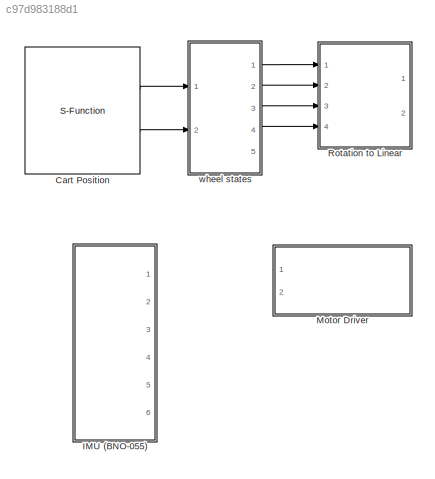
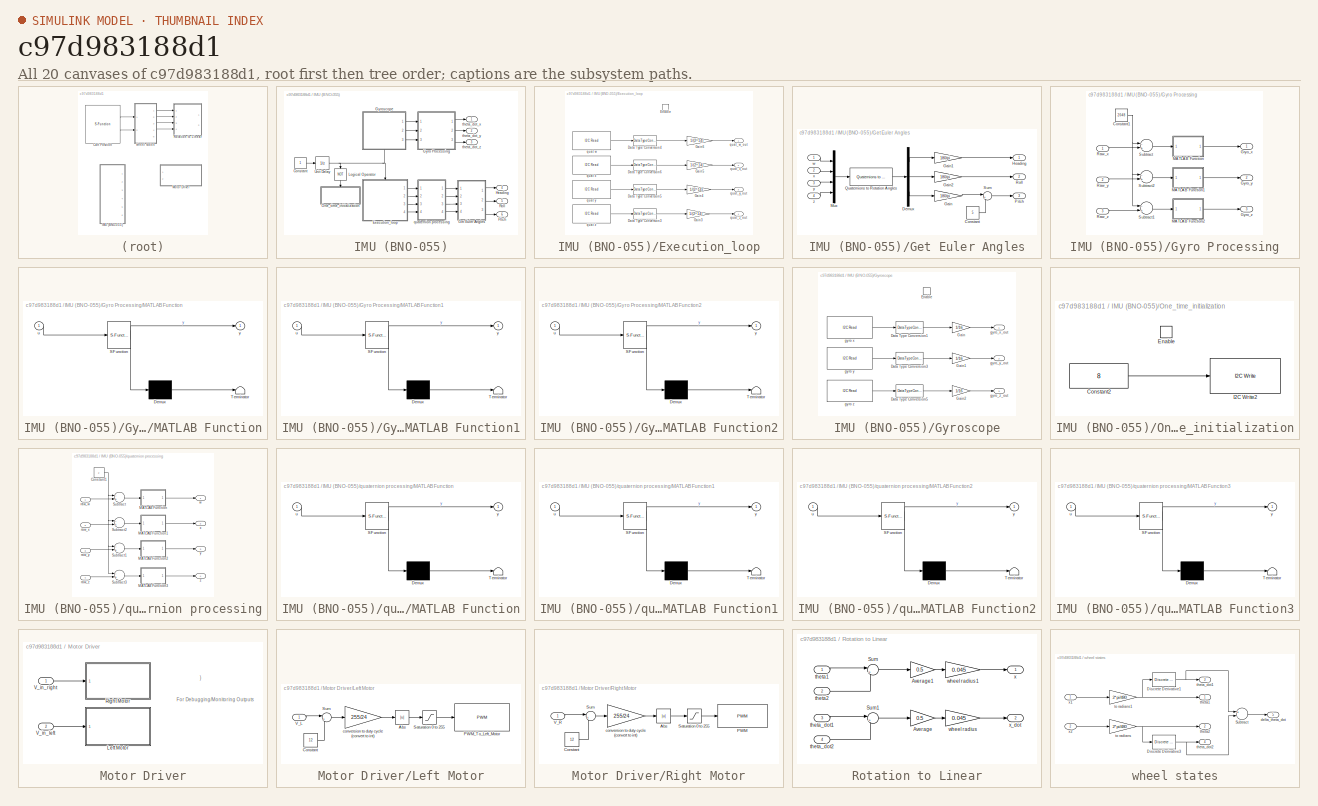
[diagram: thumbnail index - all 20 canvases of the model, root first then tree order]
MODEL slx_c97d983188d1
KIND model
CONFIG AbsTol = auto
CONFIG FixedStep = auto
CONFIG MaxStep = auto
CONFIG MinStep = auto
CONFIG RelTol = 1e-3
CONFIG SampleTimeConstraint = Unconstrained
CONFIG Solver = FixedStepAuto
CONFIG SolverMode = Auto
CONFIG SolverName = FixedStepAuto
CONFIG StartTime = 0.0
CONFIG StopTime = inf
BLOCK [S-Function] Cart Position
  CopyFcn = set_param(gcbh,'LinkStatus','none')
  EnableBusSupport = off
  FunctionName = Read_Quad_Encoders
  InitFcn = try, set_param(gcb,'FunctionName','Read_Quad_Encoders'), end
  OpenFcn = sfunctionwizard(gcbh)
  Parameters = uint8([0 1]),uint8([2 3]),uint8([7 8])
  Ports = [0, 2]
  PreSaveFcn = try, set_param(gcb,'FunctionName','Read_Quad_Encoders'), end
  SFunctionDeploymentMode = off
  SFunctionModules = Read_Quad_Encoders_wrapper
BLOCK [SubSystem] IMU (BNO-055)
  Ports = [0, 6]
  RequestExecContextInheritance = off
  Variant = off
BLOCK [Constant] IMU (BNO-055)/Constant
  OutDataTypeStr = boolean
  SampleTime = 0.02
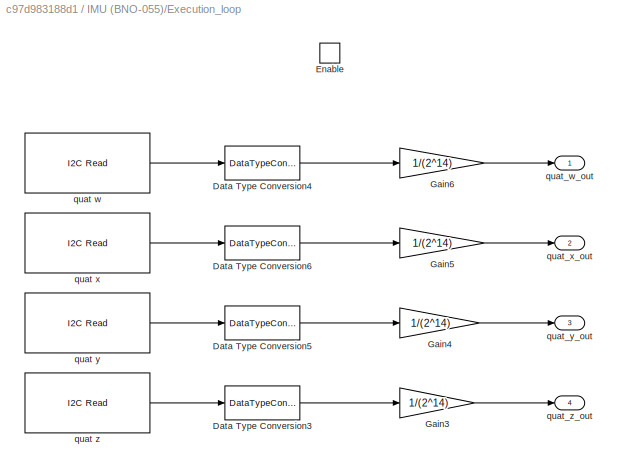
BLOCK [SubSystem] IMU (BNO-055)/Execution_loop
  Ports = [0, 4, 1]
  RequestExecContextInheritance = off
  TreatAsAtomicUnit = on
  Variant = off
BLOCK [DataTypeConversion] IMU (BNO-055)/Execution_loop/Data Type Conversion3
  ConvertRealWorld = Stored Integer (SI)
  OutDataTypeStr = double
  RndMeth = Floor
  SaturateOnIntegerOverflow = off
BLOCK [DataTypeConversion] IMU (BNO-055)/Execution_loop/Data Type Conversion4
  ConvertRealWorld = Stored Integer (SI)
  OutDataTypeStr = double
  RndMeth = Floor
  SaturateOnIntegerOverflow = off
BLOCK [DataTypeConversion] IMU (BNO-055)/Execution_loop/Data Type Conversion5
  ConvertRealWorld = Stored Integer (SI)
  OutDataTypeStr = double
  RndMeth = Floor
  SaturateOnIntegerOverflow = off
BLOCK [DataTypeConversion] IMU (BNO-055)/Execution_loop/Data Type Conversion6
  ConvertRealWorld = Stored Integer (SI)
  OutDataTypeStr = double
  RndMeth = Floor
  SaturateOnIntegerOverflow = off
BLOCK [EnablePort] IMU (BNO-055)/Execution_loop/Enable
  Ports = []
BLOCK [Gain] IMU (BNO-055)/Execution_loop/Gain3
  Gain = 1/(2^14)
  OutDataTypeStr = Inherit: Inherit via internal rule
  ParamDataTypeStr = Inherit: Inherit via internal rule
  SaturateOnIntegerOverflow = off
BLOCK [Gain] IMU (BNO-055)/Execution_loop/Gain4
  Gain = 1/(2^14)
  OutDataTypeStr = Inherit: Inherit via internal rule
  ParamDataTypeStr = Inherit: Inherit via internal rule
  SaturateOnIntegerOverflow = off
BLOCK [Gain] IMU (BNO-055)/Execution_loop/Gain5
  Gain = 1/(2^14)
  OutDataTypeStr = Inherit: Inherit via internal rule
  ParamDataTypeStr = Inherit: Inherit via internal rule
  SaturateOnIntegerOverflow = off
BLOCK [Gain] IMU (BNO-055)/Execution_loop/Gain6
  Gain = 1/(2^14)
  OutDataTypeStr = Inherit: Inherit via internal rule
  ParamDataTypeStr = Inherit: Inherit via internal rule
  SaturateOnIntegerOverflow = off
BLOCK [Reference] IMU (BNO-055)/Execution_loop/quat w  REF=arduinolib/I2C Read
  Ports = [0, 1]
  SourceBlock = arduinolib/I2C Read
  SourceType = I2C Read
BLOCK [Reference] IMU (BNO-055)/Execution_loop/quat x  REF=arduinolib/I2C Read
  Ports = [0, 1]
  SourceBlock = arduinolib/I2C Read
  SourceType = I2C Read
BLOCK [Reference] IMU (BNO-055)/Execution_loop/quat y  REF=arduinolib/I2C Read
  Ports = [0, 1]
  SourceBlock = arduinolib/I2C Read
  SourceType = I2C Read
BLOCK [Reference] IMU (BNO-055)/Execution_loop/quat z  REF=arduinolib/I2C Read
  Ports = [0, 1]
  SourceBlock = arduinolib/I2C Read
  SourceType = I2C Read
BLOCK [Outport] IMU (BNO-055)/Execution_loop/quat_w_out
  IconDisplay = Port number
BLOCK [Outport] IMU (BNO-055)/Execution_loop/quat_x_out
  IconDisplay = Port number
  Port = 2
BLOCK [Outport] IMU (BNO-055)/Execution_loop/quat_y_out
  IconDisplay = Port number
  Port = 3
BLOCK [Outport] IMU (BNO-055)/Execution_loop/quat_z_out
  IconDisplay = Port number
  Port = 4
BLOCK [SubSystem] IMU (BNO-055)/Get Euler Angles
  Ports = [4, 3]
  RequestExecContextInheritance = off
  Variant = off
BLOCK [Constant] IMU (BNO-055)/Get Euler Angles/Constant
  Value = 5
BLOCK [Demux] IMU (BNO-055)/Get Euler Angles/Demux
  DisplayOption = bar
  Outputs = 3
  Ports = [1, 3]
BLOCK [Gain] IMU (BNO-055)/Get Euler Angles/Gain
  Gain = 180/pi
  OutDataTypeStr = Inherit: Inherit via internal rule
  ParamDataTypeStr = Inherit: Inherit via internal rule
  SaturateOnIntegerOverflow = off
BLOCK [Gain] IMU (BNO-055)/Get Euler Angles/Gain1
  Gain = 180/pi
  OutDataTypeStr = Inherit: Inherit via internal rule
  ParamDataTypeStr = Inherit: Inherit via internal rule
  SaturateOnIntegerOverflow = off
BLOCK [Gain] IMU (BNO-055)/Get Euler Angles/Gain2
  Gain = 180/pi
  OutDataTypeStr = Inherit: Inherit via internal rule
  ParamDataTypeStr = Inherit: Inherit via internal rule
  SaturateOnIntegerOverflow = off
BLOCK [Outport] IMU (BNO-055)/Get Euler Angles/Heading
  IconDisplay = Port number
BLOCK [Mux] IMU (BNO-055)/Get Euler Angles/Mux
  DisplayOption = bar
  Ports = [4, 1]
BLOCK [Outport] IMU (BNO-055)/Get Euler Angles/Pitch
  IconDisplay = Port number
  Port = 3
BLOCK [Reference] IMU (BNO-055)/Get Euler Angles/Quaternions to Rotation Angles  REF=aerolibtransform2/Quaternions to Rotation Angles
  AttributesFormatString = Rotation Order: %<rotationOrder>
  Ports = [1, 1]
  SourceBlock = aerolibtransform2/Quaternions to Rotation Angles
  SourceType = Quat2Ang
BLOCK [Outport] IMU (BNO-055)/Get Euler Angles/Roll
  IconDisplay = Port number
  Port = 2
BLOCK [Sum] IMU (BNO-055)/Get Euler Angles/Sum
  IconShape = round
  InputSameDT = off
  Inputs = |++
  OutDataTypeStr = Inherit: Inherit via internal rule
  Ports = [2, 1]
  SaturateOnIntegerOverflow = off
BLOCK [Inport] IMU (BNO-055)/Get Euler Angles/w
  IconDisplay = Port number
BLOCK [Inport] IMU (BNO-055)/Get Euler Angles/x
  IconDisplay = Port number
  Port = 2
BLOCK [Inport] IMU (BNO-055)/Get Euler Angles/y
  IconDisplay = Port number
  Port = 3
BLOCK [Inport] IMU (BNO-055)/Get Euler Angles/z
  IconDisplay = Port number
  Port = 4
BLOCK [SubSystem] IMU (BNO-055)/Gyro Processing
  Ports = [3, 3]
  RequestExecContextInheritance = off
  Variant = off
BLOCK [Constant] IMU (BNO-055)/Gyro Processing/Constant1
  OutDataTypeStr = double
  Value = 2048
BLOCK [Outport] IMU (BNO-055)/Gyro Processing/Gryo_x
  IconDisplay = Port number
BLOCK [Outport] IMU (BNO-055)/Gyro Processing/Gyro_y
  IconDisplay = Port number
  Port = 2
BLOCK [Outport] IMU (BNO-055)/Gyro Processing/Gyro_z
  IconDisplay = Port number
  Port = 3
BLOCK [SubSystem] IMU (BNO-055)/Gyro Processing/MATLAB Function
  ErrorFcn = Stateflow.Translate.translate
  PermitHierarchicalResolution = ExplicitOnly
  Ports = [1, 1]
  RequestExecContextInheritance = off
  SFBlockType = MATLAB Function
  TreatAsAtomicUnit = on
  Variant = off
BLOCK [Demux] IMU (BNO-055)/Gyro Processing/MATLAB Function/ Demux 
  Outputs = 1
  Ports = [1, 1]
BLOCK [S-Function] IMU (BNO-055)/Gyro Processing/MATLAB Function/ SFunction 
  EnableBusSupport = on
  FunctionName = sf_sfun
  PortCounts = [1 2]
  Ports = [1, 2]
  SFunctionDeploymentMode = off
  Tag = Stateflow S-Function InvertedPendulumRobot_ControllerDesignLab 2
BLOCK [Terminator] IMU (BNO-055)/Gyro Processing/MATLAB Function/ Terminator 
BLOCK [Inport] IMU (BNO-055)/Gyro Processing/MATLAB Function/u
  IconDisplay = Port number
BLOCK [Outport] IMU (BNO-055)/Gyro Processing/MATLAB Function/y
  IconDisplay = Port number
BLOCK [SubSystem] IMU (BNO-055)/Gyro Processing/MATLAB Function1
  ErrorFcn = Stateflow.Translate.translate
  PermitHierarchicalResolution = ExplicitOnly
  Ports = [1, 1]
  RequestExecContextInheritance = off
  SFBlockType = MATLAB Function
  TreatAsAtomicUnit = on
  Variant = off
BLOCK [Demux] IMU (BNO-055)/Gyro Processing/MATLAB Function1/ Demux 
  Outputs = 1
  Ports = [1, 1]
BLOCK [S-Function] IMU (BNO-055)/Gyro Processing/MATLAB Function1/ SFunction 
  EnableBusSupport = on
  FunctionName = sf_sfun
  PortCounts = [1 2]
  Ports = [1, 2]
  SFunctionDeploymentMode = off
  Tag = Stateflow S-Function InvertedPendulumRobot_ControllerDesignLab 1
BLOCK [Terminator] IMU (BNO-055)/Gyro Processing/MATLAB Function1/ Terminator 
BLOCK [Inport] IMU (BNO-055)/Gyro Processing/MATLAB Function1/u
  IconDisplay = Port number
BLOCK [Outport] IMU (BNO-055)/Gyro Processing/MATLAB Function1/y
  IconDisplay = Port number
BLOCK [SubSystem] IMU (BNO-055)/Gyro Processing/MATLAB Function2
  ErrorFcn = Stateflow.Translate.translate
  PermitHierarchicalResolution = ExplicitOnly
  Ports = [1, 1]
  RequestExecContextInheritance = off
  SFBlockType = MATLAB Function
  TreatAsAtomicUnit = on
  Variant = off
BLOCK [Demux] IMU (BNO-055)/Gyro Processing/MATLAB Function2/ Demux 
  Outputs = 1
  Ports = [1, 1]
BLOCK [S-Function] IMU (BNO-055)/Gyro Processing/MATLAB Function2/ SFunction 
  EnableBusSupport = on
  FunctionName = sf_sfun
  PortCounts = [1 2]
  Ports = [1, 2]
  SFunctionDeploymentMode = off
  Tag = Stateflow S-Function InvertedPendulumRobot_ControllerDesignLab 3
BLOCK [Terminator] IMU (BNO-055)/Gyro Processing/MATLAB Function2/ Terminator 
BLOCK [Inport] IMU (BNO-055)/Gyro Processing/MATLAB Function2/u
  IconDisplay = Port number
BLOCK [Outport] IMU (BNO-055)/Gyro Processing/MATLAB Function2/y
  IconDisplay = Port number
BLOCK [Inport] IMU (BNO-055)/Gyro Processing/Raw_x
  IconDisplay = Port number
BLOCK [Inport] IMU (BNO-055)/Gyro Processing/Raw_y
  IconDisplay = Port number
  Port = 2
BLOCK [Inport] IMU (BNO-055)/Gyro Processing/Raw_z
  IconDisplay = Port number
  Port = 3
BLOCK [Sum] IMU (BNO-055)/Gyro Processing/Subtract
  InputSameDT = off
  Inputs = -+
  OutDataTypeStr = double
  Ports = [2, 1]
  SaturateOnIntegerOverflow = off
BLOCK [Sum] IMU (BNO-055)/Gyro Processing/Subtract1
  InputSameDT = off
  Inputs = -+
  OutDataTypeStr = double
  Ports = [2, 1]
  SaturateOnIntegerOverflow = off
BLOCK [Sum] IMU (BNO-055)/Gyro Processing/Subtract2
  InputSameDT = off
  Inputs = -+
  OutDataTypeStr = double
  Ports = [2, 1]
  SaturateOnIntegerOverflow = off
BLOCK [SubSystem] IMU (BNO-055)/Gyroscope
  Ports = [0, 3, 1]
  RequestExecContextInheritance = off
  TreatAsAtomicUnit = on
  Variant = off
BLOCK [DataTypeConversion] IMU (BNO-055)/Gyroscope/Data Type Conversion1
  OutDataTypeStr = double
  RndMeth = Floor
  SaturateOnIntegerOverflow = off
BLOCK [DataTypeConversion] IMU (BNO-055)/Gyroscope/Data Type Conversion3
  OutDataTypeStr = double
  RndMeth = Floor
  SaturateOnIntegerOverflow = off
BLOCK [DataTypeConversion] IMU (BNO-055)/Gyroscope/Data Type Conversion5
  OutDataTypeStr = double
  RndMeth = Floor
  SaturateOnIntegerOverflow = off
BLOCK [EnablePort] IMU (BNO-055)/Gyroscope/Enable
  Ports = []
BLOCK [Gain] IMU (BNO-055)/Gyroscope/Gain
  Gain = 1/16
  ParamDataTypeStr = Inherit: Inherit via internal rule
  SaturateOnIntegerOverflow = off
BLOCK [Gain] IMU (BNO-055)/Gyroscope/Gain1
  Gain = 1/16
  ParamDataTypeStr = Inherit: Inherit via internal rule
  SaturateOnIntegerOverflow = off
BLOCK [Gain] IMU (BNO-055)/Gyroscope/Gain2
  Gain = 1/16
  ParamDataTypeStr = Inherit: Inherit via internal rule
  SaturateOnIntegerOverflow = off
BLOCK [Reference] IMU (BNO-055)/Gyroscope/gyro x  REF=arduinolib/I2C Read
  Ports = [0, 1]
  SourceBlock = arduinolib/I2C Read
  SourceType = I2C Read
BLOCK [Reference] IMU (BNO-055)/Gyroscope/gyro y  REF=arduinolib/I2C Read
  Ports = [0, 1]
  SourceBlock = arduinolib/I2C Read
  SourceType = I2C Read
BLOCK [Reference] IMU (BNO-055)/Gyroscope/gyro z  REF=arduinolib/I2C Read
  Ports = [0, 1]
  SourceBlock = arduinolib/I2C Read
  SourceType = I2C Read
BLOCK [Outport] IMU (BNO-055)/Gyroscope/gyro_x_out
  IconDisplay = Port number
BLOCK [Outport] IMU (BNO-055)/Gyroscope/gyro_y_out
  IconDisplay = Port number
  Port = 2
BLOCK [Outport] IMU (BNO-055)/Gyroscope/gyro_z_out
  IconDisplay = Port number
  Port = 3
BLOCK [Outport] IMU (BNO-055)/Heading
  IconDisplay = Port number
  Port = 4
BLOCK [Logic] IMU (BNO-055)/Logical Operator
  AllPortsSameDT = off
  Operator = NOT
  OutDataTypeStr = boolean
  Ports = [1, 1]
BLOCK [SubSystem] IMU (BNO-055)/One_time_initialization
  Ports = [0, 0, 1]
  RTWSystemCode = Reusable function
  RequestExecContextInheritance = off
  TreatAsAtomicUnit = on
  Variant = off
BLOCK [Constant] IMU (BNO-055)/One_time_initialization/Constant2
  OutDataTypeStr = uint8
  Value = 8
BLOCK [EnablePort] IMU (BNO-055)/One_time_initialization/Enable
  Ports = []
BLOCK [Reference] IMU (BNO-055)/One_time_initialization/I2C Write2  REF=arduinolib/I2C Write
  AttributesFormatString = Priority=%<Priority>
  Ports = [1]
  Priority = 1
  SourceBlock = arduinolib/I2C Write
  SourceType = I2C Write
BLOCK [Outport] IMU (BNO-055)/Pitch
  IconDisplay = Port number
  Port = 6
BLOCK [Outport] IMU (BNO-055)/Roll
  IconDisplay = Port number
  Port = 5
BLOCK [UnitDelay] IMU (BNO-055)/Unit Delay
  InputProcessing = Elements as channels (sample based)
  SampleTime = 0.02
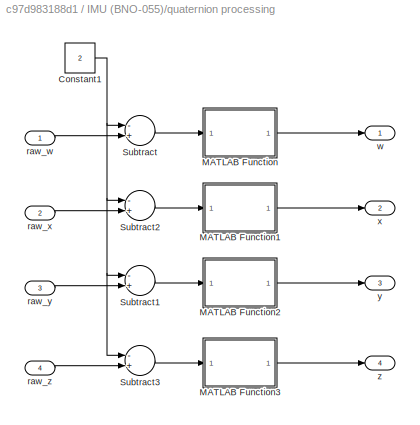
BLOCK [SubSystem] IMU (BNO-055)/quaternion processing
  Ports = [4, 4]
  RequestExecContextInheritance = off
  Variant = off
BLOCK [Constant] IMU (BNO-055)/quaternion processing/Constant1
  OutDataTypeStr = double
  Value = 2
BLOCK [SubSystem] IMU (BNO-055)/quaternion processing/MATLAB Function
  ErrorFcn = Stateflow.Translate.translate
  PermitHierarchicalResolution = ExplicitOnly
  Ports = [1, 1]
  RequestExecContextInheritance = off
  SFBlockType = MATLAB Function
  TreatAsAtomicUnit = on
  Variant = off
BLOCK [Demux] IMU (BNO-055)/quaternion processing/MATLAB Function/ Demux 
  Outputs = 1
  Ports = [1, 1]
BLOCK [S-Function] IMU (BNO-055)/quaternion processing/MATLAB Function/ SFunction 
  EnableBusSupport = on
  FunctionName = sf_sfun
  PortCounts = [1 2]
  Ports = [1, 2]
  SFunctionDeploymentMode = off
  Tag = Stateflow S-Function InvertedPendulumRobot_ControllerDesignLab 4
BLOCK [Terminator] IMU (BNO-055)/quaternion processing/MATLAB Function/ Terminator 
BLOCK [Inport] IMU (BNO-055)/quaternion processing/MATLAB Function/u
  IconDisplay = Port number
BLOCK [Outport] IMU (BNO-055)/quaternion processing/MATLAB Function/y
  IconDisplay = Port number
BLOCK [SubSystem] IMU (BNO-055)/quaternion processing/MATLAB Function1
  ErrorFcn = Stateflow.Translate.translate
  PermitHierarchicalResolution = ExplicitOnly
  Ports = [1, 1]
  RequestExecContextInheritance = off
  SFBlockType = MATLAB Function
  TreatAsAtomicUnit = on
  Variant = off
BLOCK [Demux] IMU (BNO-055)/quaternion processing/MATLAB Function1/ Demux 
  Outputs = 1
  Ports = [1, 1]
BLOCK [S-Function] IMU (BNO-055)/quaternion processing/MATLAB Function1/ SFunction 
  EnableBusSupport = on
  FunctionName = sf_sfun
  PortCounts = [1 2]
  Ports = [1, 2]
  SFunctionDeploymentMode = off
  Tag = Stateflow S-Function InvertedPendulumRobot_ControllerDesignLab 5
BLOCK [Terminator] IMU (BNO-055)/quaternion processing/MATLAB Function1/ Terminator 
BLOCK [Inport] IMU (BNO-055)/quaternion processing/MATLAB Function1/u
  IconDisplay = Port number
BLOCK [Outport] IMU (BNO-055)/quaternion processing/MATLAB Function1/y
  IconDisplay = Port number
BLOCK [SubSystem] IMU (BNO-055)/quaternion processing/MATLAB Function2
  ErrorFcn = Stateflow.Translate.translate
  PermitHierarchicalResolution = ExplicitOnly
  Ports = [1, 1]
  RequestExecContextInheritance = off
  SFBlockType = MATLAB Function
  TreatAsAtomicUnit = on
  Variant = off
BLOCK [Demux] IMU (BNO-055)/quaternion processing/MATLAB Function2/ Demux 
  Outputs = 1
  Ports = [1, 1]
BLOCK [S-Function] IMU (BNO-055)/quaternion processing/MATLAB Function2/ SFunction 
  EnableBusSupport = on
  FunctionName = sf_sfun
  PortCounts = [1 2]
  Ports = [1, 2]
  SFunctionDeploymentMode = off
  Tag = Stateflow S-Function InvertedPendulumRobot_ControllerDesignLab 6
BLOCK [Terminator] IMU (BNO-055)/quaternion processing/MATLAB Function2/ Terminator 
BLOCK [Inport] IMU (BNO-055)/quaternion processing/MATLAB Function2/u
  IconDisplay = Port number
BLOCK [Outport] IMU (BNO-055)/quaternion processing/MATLAB Function2/y
  IconDisplay = Port number
BLOCK [SubSystem] IMU (BNO-055)/quaternion processing/MATLAB Function3
  ErrorFcn = Stateflow.Translate.translate
  PermitHierarchicalResolution = ExplicitOnly
  Ports = [1, 1]
  RequestExecContextInheritance = off
  SFBlockType = MATLAB Function
  TreatAsAtomicUnit = on
  Variant = off
BLOCK [Demux] IMU (BNO-055)/quaternion processing/MATLAB Function3/ Demux 
  Outputs = 1
  Ports = [1, 1]
BLOCK [S-Function] IMU (BNO-055)/quaternion processing/MATLAB Function3/ SFunction 
  EnableBusSupport = on
  FunctionName = sf_sfun
  PortCounts = [1 2]
  Ports = [1, 2]
  SFunctionDeploymentMode = off
  Tag = Stateflow S-Function InvertedPendulumRobot_ControllerDesignLab 7
BLOCK [Terminator] IMU (BNO-055)/quaternion processing/MATLAB Function3/ Terminator 
BLOCK [Inport] IMU (BNO-055)/quaternion processing/MATLAB Function3/u
  IconDisplay = Port number
BLOCK [Outport] IMU (BNO-055)/quaternion processing/MATLAB Function3/y
  IconDisplay = Port number
BLOCK [Sum] IMU (BNO-055)/quaternion processing/Subtract
  InputSameDT = off
  Inputs = -+
  OutDataTypeStr = double
  Ports = [2, 1]
  SaturateOnIntegerOverflow = off
BLOCK [Sum] IMU (BNO-055)/quaternion processing/Subtract1
  InputSameDT = off
  Inputs = -+
  OutDataTypeStr = double
  Ports = [2, 1]
  SaturateOnIntegerOverflow = off
BLOCK [Sum] IMU (BNO-055)/quaternion processing/Subtract2
  InputSameDT = off
  Inputs = -+
  OutDataTypeStr = double
  Ports = [2, 1]
  SaturateOnIntegerOverflow = off
BLOCK [Sum] IMU (BNO-055)/quaternion processing/Subtract3
  InputSameDT = off
  Inputs = -+
  OutDataTypeStr = double
  Ports = [2, 1]
  SaturateOnIntegerOverflow = off
BLOCK [Inport] IMU (BNO-055)/quaternion processing/raw_w
  IconDisplay = Port number
BLOCK [Inport] IMU (BNO-055)/quaternion processing/raw_x
  IconDisplay = Port number
  Port = 2
BLOCK [Inport] IMU (BNO-055)/quaternion processing/raw_y
  IconDisplay = Port number
  Port = 3
BLOCK [Inport] IMU (BNO-055)/quaternion processing/raw_z
  IconDisplay = Port number
  Port = 4
BLOCK [Outport] IMU (BNO-055)/quaternion processing/w
  IconDisplay = Port number
BLOCK [Outport] IMU (BNO-055)/quaternion processing/x
  IconDisplay = Port number
  Port = 2
BLOCK [Outport] IMU (BNO-055)/quaternion processing/y
  IconDisplay = Port number
  Port = 3
BLOCK [Outport] IMU (BNO-055)/quaternion processing/z
  IconDisplay = Port number
  Port = 4
BLOCK [Outport] IMU (BNO-055)/theta_dot_x
  IconDisplay = Port number
BLOCK [Outport] IMU (BNO-055)/theta_dot_y
  IconDisplay = Port number
  Port = 2
BLOCK [Outport] IMU (BNO-055)/theta_dot_z
  IconDisplay = Port number
  Port = 3
BLOCK [SubSystem] Motor Driver
  Ports = [2]
  RequestExecContextInheritance = off
  Variant = off
BLOCK [SubSystem] Motor Driver/Left Motor
  Ports = [1]
  RequestExecContextInheritance = off
  Variant = off
BLOCK [Abs] Motor Driver/Left Motor/Abs
  SaturateOnIntegerOverflow = off
BLOCK [Constant] Motor Driver/Left Motor/Constant
  Value = 12
BLOCK [Reference] Motor Driver/Left Motor/PWM_To_Left_Motor  REF=arduinolib/PWM
  Ports = [1]
  SourceBlock = arduinolib/PWM
  SourceType = Arduino PWM
BLOCK [Saturate] Motor Driver/Left Motor/Saturation 0 to 255
  InputPortMap = u0
  LowerLimit = 0
  Ports = [1, 1]
  UpperLimit = 255
BLOCK [Sum] Motor Driver/Left Motor/Sum
  IconShape = round
  InputSameDT = off
  Inputs = |++
  OutDataTypeStr = Inherit: Inherit via internal rule
  Ports = [2, 1]
  SaturateOnIntegerOverflow = off
BLOCK [Inport] Motor Driver/Left Motor/V_L
  IconDisplay = Port number
BLOCK [Gain] Motor Driver/Left Motor/conversion to duty cycle (convert to int)
  Gain = 255/24
  OutDataTypeStr = int16
  ParamDataTypeStr = Inherit: Inherit via internal rule
  SaturateOnIntegerOverflow = off
BLOCK [SubSystem] Motor Driver/Right Motor
  Ports = [1]
  RequestExecContextInheritance = off
  Variant = off
BLOCK [Abs] Motor Driver/Right Motor/Abs
  SaturateOnIntegerOverflow = off
BLOCK [Constant] Motor Driver/Right Motor/Constant
  Value = 12
BLOCK [Reference] Motor Driver/Right Motor/PWM  REF=arduinolib/PWM
  Ports = [1]
  SourceBlock = arduinolib/PWM
  SourceType = Arduino PWM
BLOCK [Saturate] Motor Driver/Right Motor/Saturation 0 to 255
  InputPortMap = u0
  LowerLimit = 0
  Ports = [1, 1]
  UpperLimit = 255
BLOCK [Sum] Motor Driver/Right Motor/Sum
  IconShape = round
  InputSameDT = off
  Inputs = |++
  OutDataTypeStr = Inherit: Inherit via internal rule
  Ports = [2, 1]
  SaturateOnIntegerOverflow = off
BLOCK [Inport] Motor Driver/Right Motor/V_R
  IconDisplay = Port number
BLOCK [Gain] Motor Driver/Right Motor/conversion to duty cycle (convert to int)
  Gain = 255/24
  OutDataTypeStr = int16
  ParamDataTypeStr = Inherit: Inherit via internal rule
  SaturateOnIntegerOverflow = off
BLOCK [Inport] Motor Driver/V_in_left
  IconDisplay = Port number
  Port = 2
BLOCK [Inport] Motor Driver/V_in_right
  IconDisplay = Port number
BLOCK [SubSystem] Rotation to Linear
  Ports = [4, 2]
  RequestExecContextInheritance = off
  Variant = off
BLOCK [Gain] Rotation to Linear/Average
  Gain = 0.5
  OutDataTypeStr = Inherit: Inherit via internal rule
  ParamDataTypeStr = Inherit: Inherit via internal rule
  SaturateOnIntegerOverflow = off
BLOCK [Gain] Rotation to Linear/Average1
  Gain = 0.5
  OutDataTypeStr = Inherit: Inherit via internal rule
  ParamDataTypeStr = Inherit: Inherit via internal rule
  SaturateOnIntegerOverflow = off
BLOCK [Sum] Rotation to Linear/Sum
  IconShape = round
  InputSameDT = off
  Inputs = |++
  OutDataTypeStr = Inherit: Inherit via internal rule
  Ports = [2, 1]
  SaturateOnIntegerOverflow = off
BLOCK [Sum] Rotation to Linear/Sum1
  IconShape = round
  InputSameDT = off
  Inputs = |++
  OutDataTypeStr = Inherit: Inherit via internal rule
  Ports = [2, 1]
  SaturateOnIntegerOverflow = off
BLOCK [Inport] Rotation to Linear/theta1
  IconDisplay = Port number
BLOCK [Inport] Rotation to Linear/theta2
  IconDisplay = Port number
  Port = 2
BLOCK [Inport] Rotation to Linear/theta_dot1
  IconDisplay = Port number
  Port = 3
BLOCK [Inport] Rotation to Linear/theta_dot2
  IconDisplay = Port number
  Port = 4
BLOCK [Gain] Rotation to Linear/wheel radius
  Gain = 0.045
  OutDataTypeStr = Inherit: Inherit via internal rule
  ParamDataTypeStr = Inherit: Inherit via internal rule
  SaturateOnIntegerOverflow = off
BLOCK [Gain] Rotation to Linear/wheel radius 1
  Gain = 0.045
  OutDataTypeStr = Inherit: Inherit via internal rule
  ParamDataTypeStr = Inherit: Inherit via internal rule
  SaturateOnIntegerOverflow = off
BLOCK [Outport] Rotation to Linear/x
  IconDisplay = Port number
BLOCK [Outport] Rotation to Linear/x_dot
  IconDisplay = Port number
  Port = 2
BLOCK [SubSystem] wheel states
  Ports = [2, 5]
  RequestExecContextInheritance = off
  Variant = off
BLOCK [Reference] wheel states/Discrete Derivative1  REF=simulink/Discrete/Discrete Derivative
  Ports = [1, 1]
  SourceBlock = simulink/Discrete/Discrete Derivative
  SourceType = Discrete Derivative
BLOCK [Reference] wheel states/Discrete Derivative3  REF=simulink/Discrete/Discrete Derivative
  Ports = [1, 1]
  SourceBlock = simulink/Discrete/Discrete Derivative
  SourceType = Discrete Derivative
BLOCK [Sum] wheel states/Subtract
  InputSameDT = off
  Inputs = +-
  OutDataTypeStr = Inherit: Inherit via internal rule
  Ports = [2, 1]
  SaturateOnIntegerOverflow = off
BLOCK [Outport] wheel states/delta_theta_dot
  IconDisplay = Port number
  Port = 5
BLOCK [Outport] wheel states/theta1
  IconDisplay = Port number
BLOCK [Outport] wheel states/theta2
  IconDisplay = Port number
  Port = 2
BLOCK [Outport] wheel states/theta_dot1
  IconDisplay = Port number
  Port = 3
BLOCK [Outport] wheel states/theta_dot2
  IconDisplay = Port number
  Port = 4
BLOCK [Gain] wheel states/to radians
  Gain = 2*pi/480
  OutDataTypeStr = Inherit: Inherit via internal rule
  ParamDataTypeStr = Inherit: Inherit via internal rule
  SaturateOnIntegerOverflow = off
BLOCK [Gain] wheel states/to radians1
  Gain = 2*pi/480
  OutDataTypeStr = Inherit: Inherit via internal rule
  ParamDataTypeStr = Inherit: Inherit via internal rule
  SaturateOnIntegerOverflow = off
BLOCK [Inport] wheel states/x1
  IconDisplay = Port number
BLOCK [Inport] wheel states/x2
  IconDisplay = Port number
  Port = 2
ANNOTATION Motor Driver: }
ANNOTATION Motor Driver: For Debugging/Monitoring Outputs
LINE Cart Position:1 -> wheel states:1
LINE Cart Position:2 -> wheel states:2
LINE IMU (BNO-055)/Constant:1 -> IMU (BNO-055)/Unit Delay:1
LINE IMU (BNO-055)/Execution_loop/Data Type Conversion3:1 -> IMU (BNO-055)/Execution_loop/Gain3:1
LINE IMU (BNO-055)/Execution_loop/Data Type Conversion4:1 -> IMU (BNO-055)/Execution_loop/Gain6:1
LINE IMU (BNO-055)/Execution_loop/Data Type Conversion5:1 -> IMU (BNO-055)/Execution_loop/Gain4:1
LINE IMU (BNO-055)/Execution_loop/Data Type Conversion6:1 -> IMU (BNO-055)/Execution_loop/Gain5:1
LINE IMU (BNO-055)/Execution_loop/Gain3:1 -> IMU (BNO-055)/Execution_loop/quat_z_out:1
LINE IMU (BNO-055)/Execution_loop/Gain4:1 -> IMU (BNO-055)/Execution_loop/quat_y_out:1
LINE IMU (BNO-055)/Execution_loop/Gain5:1 -> IMU (BNO-055)/Execution_loop/quat_x_out:1
LINE IMU (BNO-055)/Execution_loop/Gain6:1 -> IMU (BNO-055)/Execution_loop/quat_w_out:1
LINE IMU (BNO-055)/Execution_loop/quat w:1 -> IMU (BNO-055)/Execution_loop/Data Type Conversion4:1
LINE IMU (BNO-055)/Execution_loop/quat x:1 -> IMU (BNO-055)/Execution_loop/Data Type Conversion6:1
LINE IMU (BNO-055)/Execution_loop/quat y:1 -> IMU (BNO-055)/Execution_loop/Data Type Conversion5:1
LINE IMU (BNO-055)/Execution_loop/quat z:1 -> IMU (BNO-055)/Execution_loop/Data Type Conversion3:1
LINE IMU (BNO-055)/Execution_loop:1 -> IMU (BNO-055)/quaternion processing:1
LINE IMU (BNO-055)/Execution_loop:2 -> IMU (BNO-055)/quaternion processing:2
LINE IMU (BNO-055)/Execution_loop:3 -> IMU (BNO-055)/quaternion processing:3
LINE IMU (BNO-055)/Execution_loop:4 -> IMU (BNO-055)/quaternion processing:4
LINE IMU (BNO-055)/Get Euler Angles/Constant:1 -> IMU (BNO-055)/Get Euler Angles/Sum:2
LINE IMU (BNO-055)/Get Euler Angles/Demux:1 -> IMU (BNO-055)/Get Euler Angles/Gain1:1
LINE IMU (BNO-055)/Get Euler Angles/Demux:2 -> IMU (BNO-055)/Get Euler Angles/Gain2:1
LINE IMU (BNO-055)/Get Euler Angles/Demux:3 -> IMU (BNO-055)/Get Euler Angles/Gain:1
LINE IMU (BNO-055)/Get Euler Angles/Gain1:1 -> IMU (BNO-055)/Get Euler Angles/Heading:1
LINE IMU (BNO-055)/Get Euler Angles/Gain2:1 -> IMU (BNO-055)/Get Euler Angles/Roll:1
LINE IMU (BNO-055)/Get Euler Angles/Gain:1 -> IMU (BNO-055)/Get Euler Angles/Sum:1
LINE IMU (BNO-055)/Get Euler Angles/Mux:1 -> IMU (BNO-055)/Get Euler Angles/Quaternions to Rotation Angles:1
LINE IMU (BNO-055)/Get Euler Angles/Quaternions to Rotation Angles:1 -> IMU (BNO-055)/Get Euler Angles/Demux:1
LINE IMU (BNO-055)/Get Euler Angles/Sum:1 -> IMU (BNO-055)/Get Euler Angles/Pitch:1
LINE IMU (BNO-055)/Get Euler Angles/w:1 -> IMU (BNO-055)/Get Euler Angles/Mux:1
LINE IMU (BNO-055)/Get Euler Angles/x:1 -> IMU (BNO-055)/Get Euler Angles/Mux:2
LINE IMU (BNO-055)/Get Euler Angles/y:1 -> IMU (BNO-055)/Get Euler Angles/Mux:3
LINE IMU (BNO-055)/Get Euler Angles/z:1 -> IMU (BNO-055)/Get Euler Angles/Mux:4
LINE IMU (BNO-055)/Get Euler Angles:1 -> IMU (BNO-055)/Heading:1
LINE IMU (BNO-055)/Get Euler Angles:2 -> IMU (BNO-055)/Roll:1
LINE IMU (BNO-055)/Get Euler Angles:3 -> IMU (BNO-055)/Pitch:1
NET IMU (BNO-055)/Gyro Processing/Constant1:1 -> IMU (BNO-055)/Gyro Processing/Subtract1:1, IMU (BNO-055)/Gyro Processing/Subtract2:1, IMU (BNO-055)/Gyro Processing/Subtract:1
LINE IMU (BNO-055)/Gyro Processing/MATLAB Function1:1 -> IMU (BNO-055)/Gyro Processing/Gyro_y:1
LINE IMU (BNO-055)/Gyro Processing/MATLAB Function2:1 -> IMU (BNO-055)/Gyro Processing/Gyro_z:1
LINE IMU (BNO-055)/Gyro Processing/MATLAB Function:1 -> IMU (BNO-055)/Gyro Processing/Gryo_x:1
LINE IMU (BNO-055)/Gyro Processing/Raw_x:1 -> IMU (BNO-055)/Gyro Processing/Subtract:2
LINE IMU (BNO-055)/Gyro Processing/Raw_y:1 -> IMU (BNO-055)/Gyro Processing/Subtract2:2
LINE IMU (BNO-055)/Gyro Processing/Raw_z:1 -> IMU (BNO-055)/Gyro Processing/Subtract1:2
LINE IMU (BNO-055)/Gyro Processing/Subtract1:1 -> IMU (BNO-055)/Gyro Processing/MATLAB Function2:1
LINE IMU (BNO-055)/Gyro Processing/Subtract2:1 -> IMU (BNO-055)/Gyro Processing/MATLAB Function1:1
LINE IMU (BNO-055)/Gyro Processing/Subtract:1 -> IMU (BNO-055)/Gyro Processing/MATLAB Function:1
LINE IMU (BNO-055)/Gyro Processing:1 -> IMU (BNO-055)/theta_dot_x:1
LINE IMU (BNO-055)/Gyro Processing:2 -> IMU (BNO-055)/theta_dot_y:1
LINE IMU (BNO-055)/Gyro Processing:3 -> IMU (BNO-055)/theta_dot_z:1
LINE IMU (BNO-055)/Gyroscope/Data Type Conversion1:1 -> IMU (BNO-055)/Gyroscope/Gain:1
LINE IMU (BNO-055)/Gyroscope/Data Type Conversion3:1 -> IMU (BNO-055)/Gyroscope/Gain1:1
LINE IMU (BNO-055)/Gyroscope/Data Type Conversion5:1 -> IMU (BNO-055)/Gyroscope/Gain2:1
LINE IMU (BNO-055)/Gyroscope/Gain1:1 -> IMU (BNO-055)/Gyroscope/gyro_y_out:1
LINE IMU (BNO-055)/Gyroscope/Gain2:1 -> IMU (BNO-055)/Gyroscope/gyro_z_out:1
LINE IMU (BNO-055)/Gyroscope/Gain:1 -> IMU (BNO-055)/Gyroscope/gyro_x_out:1
LINE IMU (BNO-055)/Gyroscope/gyro x:1 -> IMU (BNO-055)/Gyroscope/Data Type Conversion1:1
LINE IMU (BNO-055)/Gyroscope/gyro y:1 -> IMU (BNO-055)/Gyroscope/Data Type Conversion3:1
LINE IMU (BNO-055)/Gyroscope/gyro z:1 -> IMU (BNO-055)/Gyroscope/Data Type Conversion5:1
LINE IMU (BNO-055)/Gyroscope:1 -> IMU (BNO-055)/Gyro Processing:1
LINE IMU (BNO-055)/Gyroscope:2 -> IMU (BNO-055)/Gyro Processing:2
LINE IMU (BNO-055)/Gyroscope:3 -> IMU (BNO-055)/Gyro Processing:3
LINE IMU (BNO-055)/Logical Operator:1 -> IMU (BNO-055)/One_time_initialization:enable
LINE IMU (BNO-055)/One_time_initialization/Constant2:1 -> IMU (BNO-055)/One_time_initialization/I2C Write2:1
NET IMU (BNO-055)/Unit Delay:1 -> IMU (BNO-055)/Execution_loop:enable, IMU (BNO-055)/Gyroscope:enable, IMU (BNO-055)/Logical Operator:1
NET IMU (BNO-055)/quaternion processing/Constant1:1 -> IMU (BNO-055)/quaternion processing/Subtract1:1, IMU (BNO-055)/quaternion processing/Subtract2:1, IMU (BNO-055)/quaternion processing/Subtract3:1, IMU (BNO-055)/quaternion processing/Subtract:1
LINE IMU (BNO-055)/quaternion processing/MATLAB Function1:1 -> IMU (BNO-055)/quaternion processing/x:1
LINE IMU (BNO-055)/quaternion processing/MATLAB Function2:1 -> IMU (BNO-055)/quaternion processing/y:1
LINE IMU (BNO-055)/quaternion processing/MATLAB Function3:1 -> IMU (BNO-055)/quaternion processing/z:1
LINE IMU (BNO-055)/quaternion processing/MATLAB Function:1 -> IMU (BNO-055)/quaternion processing/w:1
LINE IMU (BNO-055)/quaternion processing/Subtract1:1 -> IMU (BNO-055)/quaternion processing/MATLAB Function2:1
LINE IMU (BNO-055)/quaternion processing/Subtract2:1 -> IMU (BNO-055)/quaternion processing/MATLAB Function1:1
LINE IMU (BNO-055)/quaternion processing/Subtract3:1 -> IMU (BNO-055)/quaternion processing/MATLAB Function3:1
LINE IMU (BNO-055)/quaternion processing/Subtract:1 -> IMU (BNO-055)/quaternion processing/MATLAB Function:1
LINE IMU (BNO-055)/quaternion processing/raw_w:1 -> IMU (BNO-055)/quaternion processing/Subtract:2
LINE IMU (BNO-055)/quaternion processing/raw_x:1 -> IMU (BNO-055)/quaternion processing/Subtract2:2
LINE IMU (BNO-055)/quaternion processing/raw_y:1 -> IMU (BNO-055)/quaternion processing/Subtract1:2
LINE IMU (BNO-055)/quaternion processing/raw_z:1 -> IMU (BNO-055)/quaternion processing/Subtract3:2
LINE IMU (BNO-055)/quaternion processing:1 -> IMU (BNO-055)/Get Euler Angles:1
LINE IMU (BNO-055)/quaternion processing:2 -> IMU (BNO-055)/Get Euler Angles:2
LINE IMU (BNO-055)/quaternion processing:3 -> IMU (BNO-055)/Get Euler Angles:3
LINE IMU (BNO-055)/quaternion processing:4 -> IMU (BNO-055)/Get Euler Angles:4
LINE Motor Driver/Left Motor/Abs:1 -> Motor Driver/Left Motor/Saturation 0 to 255:1
LINE Motor Driver/Left Motor/Constant:1 -> Motor Driver/Left Motor/Sum:2
LINE Motor Driver/Left Motor/Saturation 0 to 255:1 -> Motor Driver/Left Motor/PWM_To_Left_Motor:1
LINE Motor Driver/Left Motor/Sum:1 -> Motor Driver/Left Motor/conversion to duty cycle (convert to int):1
LINE Motor Driver/Left Motor/V_L:1 -> Motor Driver/Left Motor/Sum:1
LINE Motor Driver/Left Motor/conversion to duty cycle (convert to int):1 -> Motor Driver/Left Motor/Abs:1
LINE Motor Driver/Right Motor/Abs:1 -> Motor Driver/Right Motor/Saturation 0 to 255:1
LINE Motor Driver/Right Motor/Constant:1 -> Motor Driver/Right Motor/Sum:2
LINE Motor Driver/Right Motor/Saturation 0 to 255:1 -> Motor Driver/Right Motor/PWM:1
LINE Motor Driver/Right Motor/Sum:1 -> Motor Driver/Right Motor/conversion to duty cycle (convert to int):1
LINE Motor Driver/Right Motor/V_R:1 -> Motor Driver/Right Motor/Sum:1
LINE Motor Driver/Right Motor/conversion to duty cycle (convert to int):1 -> Motor Driver/Right Motor/Abs:1
LINE Motor Driver/V_in_left:1 -> Motor Driver/Left Motor:1
LINE Motor Driver/V_in_right:1 -> Motor Driver/Right Motor:1
LINE Rotation to Linear/Average1:1 -> Rotation to Linear/wheel radius 1:1
LINE Rotation to Linear/Average:1 -> Rotation to Linear/wheel radius:1
LINE Rotation to Linear/Sum1:1 -> Rotation to Linear/Average:1
LINE Rotation to Linear/Sum:1 -> Rotation to Linear/Average1:1
LINE Rotation to Linear/theta1:1 -> Rotation to Linear/Sum:1
LINE Rotation to Linear/theta2:1 -> Rotation to Linear/Sum:2
LINE Rotation to Linear/theta_dot1:1 -> Rotation to Linear/Sum1:1
LINE Rotation to Linear/theta_dot2:1 -> Rotation to Linear/Sum1:2
LINE Rotation to Linear/wheel radius 1:1 -> Rotation to Linear/x:1
LINE Rotation to Linear/wheel radius:1 -> Rotation to Linear/x_dot:1
NET wheel states/Discrete Derivative1:1 -> wheel states/Subtract:1, wheel states/theta_dot1:1
NET wheel states/Discrete Derivative3:1 -> wheel states/Subtract:2, wheel states/theta_dot2:1
LINE wheel states/Subtract:1 -> wheel states/delta_theta_dot:1
NET wheel states/to radians1:1 -> wheel states/Discrete Derivative1:1, wheel states/theta1:1
NET wheel states/to radians:1 -> wheel states/Discrete Derivative3:1, wheel states/theta2:1
LINE wheel states/x1:1 -> wheel states/to radians1:1
LINE wheel states/x2:1 -> wheel states/to radians:1
LINE wheel states:1 -> Rotation to Linear:1
LINE wheel states:2 -> Rotation to Linear:2
LINE wheel states:3 -> Rotation to Linear:3
LINE wheel states:4 -> Rotation to Linear:4
note: NET lines group one-source signal fan-out (src -> all destinations, sorted); 1:1 wires keep LINE
CHART IMU (BNO-055)/Gyro Processing/MATLAB Function1 states=1 transitions=1
  STATE_LABEL 'eML_blk_kernel()'
  STATE_LABEL 'SCRIPT:\nfunction y = fcn(u)\n%#codegen\nif u>1000\n    u=u-2048;\nelseif u<1000\n    u=u+2048;\nelse\n    u=u;\nend\ny = u;'
CHART IMU (BNO-055)/Gyro Processing/MATLAB Function states=1 transitions=1
  STATE_LABEL 'eML_blk_kernel()'
  STATE_LABEL 'SCRIPT:\nfunction y = fcn(u)\n%#codegen\nif u>1000\n    u=u-2048;\nelseif u<1000\n    u=u+2048;\nelse\n    u=u;\nend\ny = u;'
CHART IMU (BNO-055)/Gyro Processing/MATLAB Function2 states=1 transitions=1
  STATE_LABEL 'eML_blk_kernel()'
  STATE_LABEL 'SCRIPT:\nfunction y = fcn(u)\n%#codegen\nif u>1000\n    u=u-2048;\nelseif u<1000\n    u=u+2048;\nelse\n    u=u;\nend\ny = u;'
CHART IMU (BNO-055)/quaternion processing/MATLAB Function states=1 transitions=1
  STATE_LABEL 'eML_blk_kernel()'
  STATE_LABEL 'SCRIPT:\nfunction y = fcn(u)\n%#codegen\nif u>1\n    u=u-2;\nelseif u<-1\n    u=u+2;\nend\ny = u;'
CHART IMU (BNO-055)/quaternion processing/MATLAB Function1 states=1 transitions=1
  STATE_LABEL 'eML_blk_kernel()'
  STATE_LABEL 'SCRIPT:\nfunction y = fcn(u)\n%#codegen\nif u>1\n    u=u-2;\nelseif u<-1\n    u=u+2;\nend\ny = u;'
CHART IMU (BNO-055)/quaternion processing/MATLAB Function2 states=1 transitions=1
  STATE_LABEL 'eML_blk_kernel()'
  STATE_LABEL 'SCRIPT:\nfunction y = fcn(u)\n%#codegen\nif u>1\n    u=u-2;\nelseif u<-1\n    u=u+2;\nend\ny = u;'
CHART IMU (BNO-055)/quaternion processing/MATLAB Function3 states=1 transitions=1
  STATE_LABEL 'eML_blk_kernel()'
  STATE_LABEL 'SCRIPT:\nfunction y = fcn(u)\n%#codegen\nif u>1\n    u=u-2;\nelseif u<-1\n    u=u+2;\nend\ny = u;'
